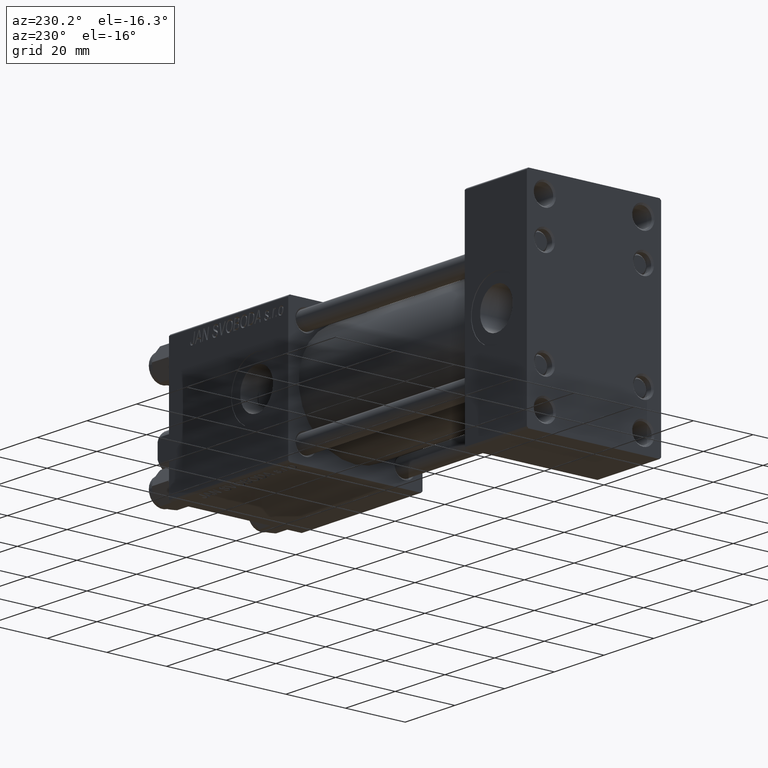
[diagram: clean part render]
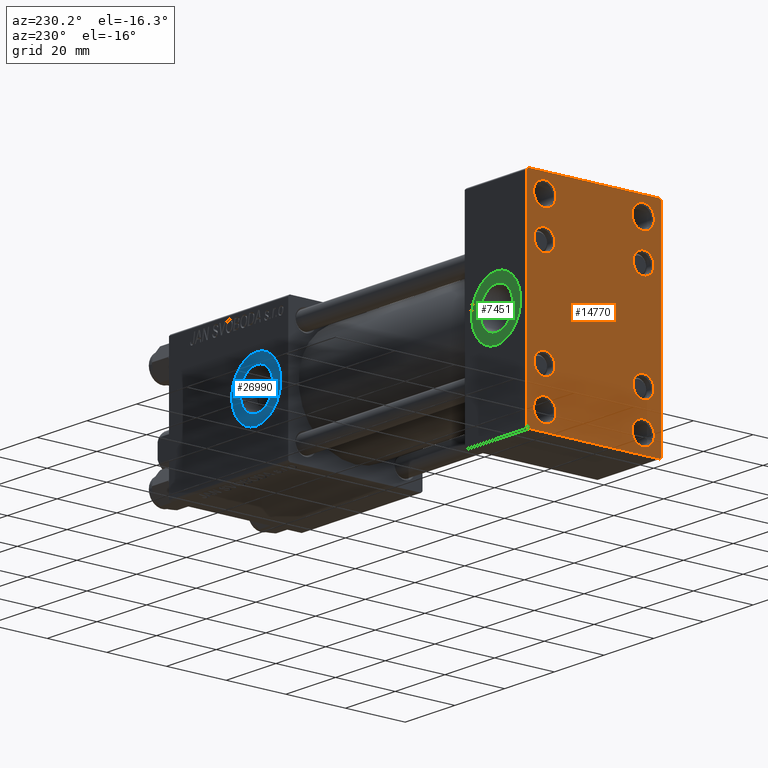
[diagram: same view with three faces highlighted in distinct colors, each labeled with its STEP entity id]
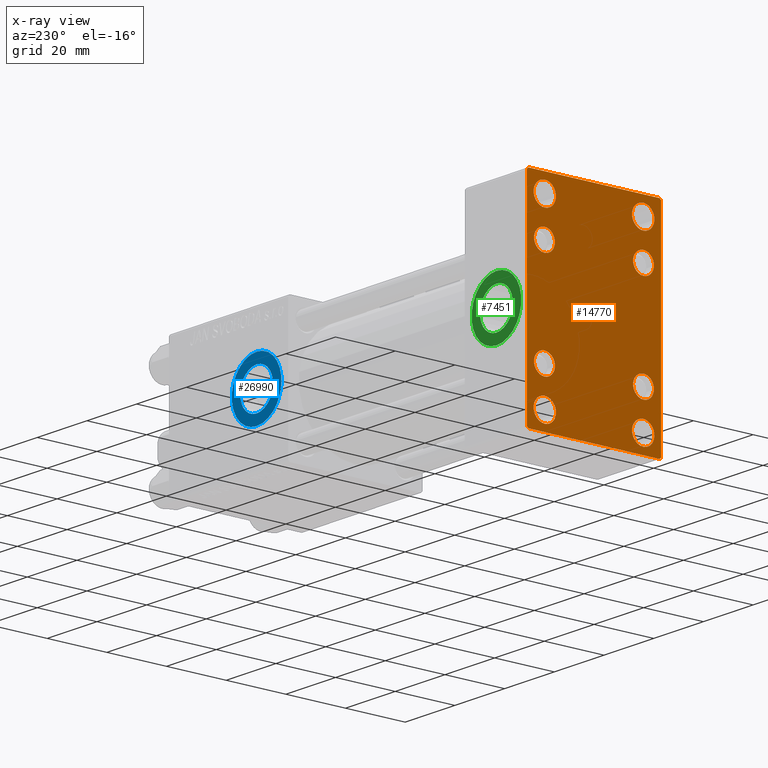
[diagram: x-ray of the same camera — body ghosted, the three highlighted faces saturated]
A machine part, auxiliary view with three faces highlighted in distinct colors.
The next image is the same camera in x-ray (body ghosted, the three faces saturated) — at least one of them is partly hidden behind the body in this view.
Their STEP definitions:

[orange] entity #14770 — the highlighted planar face has unit normal (-1, 0, 0).
#19 = CARTESIAN_POINT ( 'NONE',  ( 0.000000000000000000, -16.59999999999999076, -16.60000000000000853 ) ) ;
#340 = LINE ( 'NONE', #34415, #39537 ) ;
#993 = EDGE_LOOP ( 'NONE', ( #35788, #36703, #14928, #45747, #32340, #28656, #50012, #1225 ) ) ;
#1225 = ORIENTED_EDGE ( 'NONE', *, *, #49461, .T. ) ;
#1514 = EDGE_CURVE ( 'NONE', #44925, #46513, #1589, .T. ) ;
#1589 = LINE ( 'NONE', #13730, #20178 ) ;
#1958 = VERTEX_POINT ( 'NONE', #8285 ) ;
#2101 = EDGE_CURVE ( 'NONE', #17118, #27489, #17764, .T. ) ;
#2146 = EDGE_LOOP ( 'NONE', ( #27275, #46003 ) ) ;
#2256 = AXIS2_PLACEMENT_3D ( 'NONE', #41048, #37242, #14292 ) ;
#2550 = EDGE_LOOP ( 'NONE', ( #7690, #6090 ) ) ;
#2615 = CARTESIAN_POINT ( 'NONE',  ( 0.000000000000000000, 22.00000000000000355, 35.00000000000000711 ) ) ;
#2886 = DIRECTION ( 'NONE',  ( 1.000000000000000000, -0.000000000000000000, 0.000000000000000000 ) ) ;
#2888 = CIRCLE ( 'NONE', #7740, 3.499999999999996003 ) ;
#3359 = AXIS2_PLACEMENT_3D ( 'NONE', #49389, #14545, #38243 ) ;
#3591 = CARTESIAN_POINT ( 'NONE',  ( 0.000000000000000000, 16.49999999999999289, -32.75000000000002132 ) ) ;
#3672 = EDGE_CURVE ( 'NONE', #49989, #28768, #36212, .T. ) ;
#3729 = VERTEX_POINT ( 'NONE', #23301 ) ;
#4315 = AXIS2_PLACEMENT_3D ( 'NONE', #12305, #34225, #11020 ) ;
#4765 = AXIS2_PLACEMENT_3D ( 'NONE', #38702, #22805, #49825 ) ;
#4962 = DIRECTION ( 'NONE',  ( -0.000000000000000000, 0.7071067811865426878, 0.7071067811865524577 ) ) ;
#5072 = VERTEX_POINT ( 'NONE', #40037 ) ;
#5158 = VERTEX_POINT ( 'NONE', #32451 ) ;
#5637 = AXIS2_PLACEMENT_3D ( 'NONE', #25155, #5727, #24419 ) ;
#5727 = DIRECTION ( 'NONE',  ( 1.000000000000000000, -0.000000000000000000, 0.000000000000000000 ) ) ;
#5779 = DIRECTION ( 'NONE',  ( 0.000000000000000000, 0.000000000000000000, -1.000000000000000000 ) ) ;
#5967 = CARTESIAN_POINT ( 'NONE',  ( -0.000000000000000000, -28.50000000000015632, 28.49999999999976197 ) ) ;
#6090 = ORIENTED_EDGE ( 'NONE', *, *, #37581, .T. ) ;
#6102 = DIRECTION ( 'NONE',  ( 1.000000000000000000, -0.000000000000000000, 0.000000000000000000 ) ) ;
#6195 = ORIENTED_EDGE ( 'NONE', *, *, #3672, .T. ) ;
#6526 = DIRECTION ( 'NONE',  ( 1.000000000000000000, -0.000000000000000000, 0.000000000000000000 ) ) ;
#7039 = FACE_OUTER_BOUND ( 'NONE', #993, .T. ) ;
#7209 = EDGE_CURVE ( 'NONE', #27494, #46513, #44171, .T. ) ;
#7690 = ORIENTED_EDGE ( 'NONE', *, *, #47673, .T. ) ;
#7740 = AXIS2_PLACEMENT_3D ( 'NONE', #43168, #19674, #27977 ) ;
#8126 = ORIENTED_EDGE ( 'NONE', *, *, #35413, .T. ) ;
#8285 = CARTESIAN_POINT ( 'NONE',  ( 0.000000000000000000, -16.59999999999999076, -13.10000000000001030 ) ) ;
#8362 = AXIS2_PLACEMENT_3D ( 'NONE', #49472, #14882, #22693 ) ;
#8973 = CIRCLE ( 'NONE', #9773, 3.750000000000013767 ) ;
#9625 = EDGE_CURVE ( 'NONE', #9941, #1958, #46134, .T. ) ;
#9773 = AXIS2_PLACEMENT_3D ( 'NONE', #22895, #49427, #38286 ) ;
#9941 = VERTEX_POINT ( 'NONE', #31956 ) ;
#10356 = DIRECTION ( 'NONE',  ( 1.000000000000000000, -0.000000000000000000, 0.000000000000000000 ) ) ;
#10840 = FACE_BOUND ( 'NONE', #2550, .T. ) ;
#11020 = DIRECTION ( 'NONE',  ( 0.000000000000000000, 0.000000000000000000, 1.000000000000000000 ) ) ;
#11122 = ORIENTED_EDGE ( 'NONE', *, *, #32182, .T. ) ;
#11132 = CIRCLE ( 'NONE', #48244, 3.750000000000003553 ) ;
#11333 = FACE_BOUND ( 'NONE', #13710, .T. ) ;
#11489 = ORIENTED_EDGE ( 'NONE', *, *, #30185, .T. ) ;
#11554 = CARTESIAN_POINT ( 'NONE',  ( 0.000000000000000000, 16.49999999999999289, -29.00000000000000711 ) ) ;
#11586 = FACE_BOUND ( 'NONE', #2146, .T. ) ;
#11842 = EDGE_CURVE ( 'NONE', #26205, #49005, #13106, .T. ) ;
#12305 = CARTESIAN_POINT ( 'NONE',  ( 0.000000000000000000, 16.59999999999999787, 16.60000000000000497 ) ) ;
#12719 = DIRECTION ( 'NONE',  ( 1.000000000000000000, -0.000000000000000000, 0.000000000000000000 ) ) ;
#13077 = DIRECTION ( 'NONE',  ( 0.000000000000000000, 0.000000000000000000, 1.000000000000000000 ) ) ;
#13106 = CIRCLE ( 'NONE', #21175, 3.750000000000013767 ) ;
#13422 = CARTESIAN_POINT ( 'NONE',  ( 0.000000000000000000, -16.50000000000000711, 25.24999999999997513 ) ) ;
#13710 = EDGE_LOOP ( 'NONE', ( #16672, #18071 ) ) ;
#13730 = CARTESIAN_POINT ( 'NONE',  ( 0.000000000000000000, -28.50000000000015632, -28.49999999999976197 ) ) ;
#14292 = DIRECTION ( 'NONE',  ( 0.000000000000000000, 0.000000000000000000, 1.000000000000000000 ) ) ;
#14423 = CIRCLE ( 'NONE', #49095, 3.750000000000003553 ) ;
#14545 = DIRECTION ( 'NONE',  ( 1.000000000000000000, -0.000000000000000000, 0.000000000000000000 ) ) ;
#14707 = CARTESIAN_POINT ( 'NONE',  ( 0.000000000000000000, 16.59999999999999787, -20.10000000000000142 ) ) ;
#14770 = ADVANCED_FACE ( 'NONE', ( #26977, #42401, #34290, #11586, #10840, #11333, #26233, #41640, #7039 ), #34036, .T. ) ;
#14882 = DIRECTION ( 'NONE',  ( -1.000000000000000000, 0.000000000000000000, -0.000000000000000000 ) ) ;
#14928 = ORIENTED_EDGE ( 'NONE', *, *, #40414, .T. ) ;
#15126 = EDGE_LOOP ( 'NONE', ( #19274, #22345 ) ) ;
#15142 = DIRECTION ( 'NONE',  ( 0.000000000000000000, 0.000000000000000000, 1.000000000000000000 ) ) ;
#15259 = DIRECTION ( 'NONE',  ( 0.000000000000000000, 0.000000000000000000, -1.000000000000000000 ) ) ;
#15860 = LINE ( 'NONE', #20383, #28322 ) ;
#16081 = CARTESIAN_POINT ( 'NONE',  ( 0.000000000000000000, -16.50000000000000711, -25.24999999999999289 ) ) ;
#16672 = ORIENTED_EDGE ( 'NONE', *, *, #45152, .T. ) ;
#17118 = VERTEX_POINT ( 'NONE', #29129 ) ;
#17311 = DIRECTION ( 'NONE',  ( 0.000000000000000000, -1.000000000000000000, -1.541976423090495387E-16 ) ) ;
#17764 = CIRCLE ( 'NONE', #5637, 3.499999999999996003 ) ;
#18071 = ORIENTED_EDGE ( 'NONE', *, *, #9625, .T. ) ;
#18101 = DIRECTION ( 'NONE',  ( 0.000000000000000000, 0.000000000000000000, 1.000000000000000000 ) ) ;
#18434 = CIRCLE ( 'NONE', #2256, 3.499999999999996003 ) ;
#18440 = CARTESIAN_POINT ( 'NONE',  ( 0.000000000000000000, 16.59999999999999787, -16.60000000000000497 ) ) ;
#18903 = ORIENTED_EDGE ( 'NONE', *, *, #18930, .T. ) ;
#18930 = EDGE_CURVE ( 'NONE', #20321, #39971, #11132, .T. ) ;
#19151 = EDGE_CURVE ( 'NONE', #27489, #17118, #38553, .T. ) ;
#19274 = ORIENTED_EDGE ( 'NONE', *, *, #2101, .T. ) ;
#19674 = DIRECTION ( 'NONE',  ( 1.000000000000000000, -0.000000000000000000, 0.000000000000000000 ) ) ;
#19723 = AXIS2_PLACEMENT_3D ( 'NONE', #43057, #12719, #35426 ) ;
#19746 = DIRECTION ( 'NONE',  ( 0.000000000000000000, 0.000000000000000000, 1.000000000000000000 ) ) ;
#19787 = EDGE_CURVE ( 'NONE', #3729, #28640, #20835, .T. ) ;
#20178 = VECTOR ( 'NONE', #32886, 1000.000000000000000 ) ;
#20321 = VERTEX_POINT ( 'NONE', #39814 ) ;
#20377 = LINE ( 'NONE', #47393, #36203 ) ;
#20383 = CARTESIAN_POINT ( 'NONE',  ( 0.000000000000000000, 22.50000000000000355, 35.00000000000000711 ) ) ;
#20512 = EDGE_CURVE ( 'NONE', #39971, #20321, #14423, .T. ) ;
#20551 = LINE ( 'NONE', #20790, #40023 ) ;
#20790 = CARTESIAN_POINT ( 'NONE',  ( 0.000000000000000000, 28.49999999999984013, -28.50000000000024158 ) ) ;
#20835 = CIRCLE ( 'NONE', #46662, 3.750000000000017319 ) ;
#20963 = CARTESIAN_POINT ( 'NONE',  ( 0.000000000000000000, -21.99999999999998934, -35.00000000000000000 ) ) ;
#21082 = LINE ( 'NONE', #43580, #36589 ) ;
#21175 = AXIS2_PLACEMENT_3D ( 'NONE', #11554, #6526, #21924 ) ;
#21504 = DIRECTION ( 'NONE',  ( 0.000000000000000000, 0.000000000000000000, 1.000000000000000000 ) ) ;
#21779 = VERTEX_POINT ( 'NONE', #48278 ) ;
#21816 = EDGE_CURVE ( 'NONE', #49005, #26205, #26538, .T. ) ;
#21902 = AXIS2_PLACEMENT_3D ( 'NONE', #19, #39171, #19746 ) ;
#21924 = DIRECTION ( 'NONE',  ( 0.000000000000000000, 0.000000000000000000, 1.000000000000000000 ) ) ;
#22345 = ORIENTED_EDGE ( 'NONE', *, *, #19151, .T. ) ;
#22647 = VECTOR ( 'NONE', #5779, 1000.000000000000000 ) ;
#22693 = DIRECTION ( 'NONE',  ( -0.000000000000000000, 0.000000000000000000, 1.000000000000000000 ) ) ;
#22760 = EDGE_LOOP ( 'NONE', ( #8126, #6195 ) ) ;
#22805 = DIRECTION ( 'NONE',  ( 1.000000000000000000, -0.000000000000000000, 0.000000000000000000 ) ) ;
#22895 = CARTESIAN_POINT ( 'NONE',  ( 0.000000000000000000, -16.50000000000000711, -29.00000000000000711 ) ) ;
#23280 = EDGE_CURVE ( 'NONE', #28640, #3729, #33070, .T. ) ;
#23301 = CARTESIAN_POINT ( 'NONE',  ( 0.000000000000000000, -16.50000000000000711, 32.75000000000000711 ) ) ;
#24419 = DIRECTION ( 'NONE',  ( 0.000000000000000000, 0.000000000000000000, 1.000000000000000000 ) ) ;
#24728 = ORIENTED_EDGE ( 'NONE', *, *, #20512, .T. ) ;
#25155 = CARTESIAN_POINT ( 'NONE',  ( 0.000000000000000000, 16.59999999999999787, -16.60000000000000497 ) ) ;
#26205 = VERTEX_POINT ( 'NONE', #3591 ) ;
#26233 = FACE_BOUND ( 'NONE', #15126, .T. ) ;
#26538 = CIRCLE ( 'NONE', #47559, 3.750000000000013767 ) ;
#26977 = FACE_BOUND ( 'NONE', #28377, .T. ) ;
#27275 = ORIENTED_EDGE ( 'NONE', *, *, #21816, .T. ) ;
#27290 = EDGE_CURVE ( 'NONE', #5158, #34226, #340, .T. ) ;
#27489 = VERTEX_POINT ( 'NONE', #14707 ) ;
#27494 = VERTEX_POINT ( 'NONE', #30330 ) ;
#27874 = VERTEX_POINT ( 'NONE', #42671 ) ;
#27977 = DIRECTION ( 'NONE',  ( 0.000000000000000000, 0.000000000000000000, 1.000000000000000000 ) ) ;
#28322 = VECTOR ( 'NONE', #35257, 1000.000000000000000 ) ;
#28377 = EDGE_LOOP ( 'NONE', ( #18903, #24728 ) ) ;
#28389 = CIRCLE ( 'NONE', #3359, 3.750000000000013767 ) ;
#28640 = VERTEX_POINT ( 'NONE', #13422 ) ;
#28656 = ORIENTED_EDGE ( 'NONE', *, *, #49432, .T. ) ;
#28768 = VERTEX_POINT ( 'NONE', #39626 ) ;
#29045 = CARTESIAN_POINT ( 'NONE',  ( 0.000000000000000000, 16.49999999999999289, -25.24999999999999289 ) ) ;
#29053 = EDGE_CURVE ( 'NONE', #39583, #21779, #15860, .T. ) ;
#29129 = CARTESIAN_POINT ( 'NONE',  ( 0.000000000000000000, 16.59999999999999787, -13.10000000000000675 ) ) ;
#30185 = EDGE_CURVE ( 'NONE', #36292, #37357, #8973, .T. ) ;
#30330 = CARTESIAN_POINT ( 'NONE',  ( 0.000000000000000000, -22.49999999999999645, 34.50000000000000000 ) ) ;
#31956 = CARTESIAN_POINT ( 'NONE',  ( 0.000000000000000000, -16.59999999999999076, -20.10000000000000497 ) ) ;
#32182 = EDGE_CURVE ( 'NONE', #37357, #36292, #28389, .T. ) ;
#32340 = ORIENTED_EDGE ( 'NONE', *, *, #7209, .F. ) ;
#32451 = CARTESIAN_POINT ( 'NONE',  ( 0.000000000000000000, 22.50000000000000355, 34.49999999999999289 ) ) ;
#32886 = DIRECTION ( 'NONE',  ( 0.000000000000000000, -0.7071067811865426878, 0.7071067811865524577 ) ) ;
#33070 = CIRCLE ( 'NONE', #37107, 3.750000000000017319 ) ;
#33420 = EDGE_LOOP ( 'NONE', ( #11122, #11489 ) ) ;
#33646 = EDGE_LOOP ( 'NONE', ( #36096, #38894 ) ) ;
#33746 = CARTESIAN_POINT ( 'NONE',  ( 0.000000000000000000, 22.50000000000000355, -34.49999999999999289 ) ) ;
#33766 = CARTESIAN_POINT ( 'NONE',  ( 0.000000000000000000, -22.49999999999999645, 35.00000000000000000 ) ) ;
#34036 = PLANE ( 'NONE',  #8362 ) ;
#34225 = DIRECTION ( 'NONE',  ( 1.000000000000000000, -0.000000000000000000, 0.000000000000000000 ) ) ;
#34226 = VERTEX_POINT ( 'NONE', #33746 ) ;
#34290 = FACE_BOUND ( 'NONE', #33420, .T. ) ;
#34415 = CARTESIAN_POINT ( 'NONE',  ( 0.000000000000000000, 22.50000000000000355, 35.00000000000000711 ) ) ;
#35257 = DIRECTION ( 'NONE',  ( 0.000000000000000000, -1.000000000000000000, -1.541976423090495387E-16 ) ) ;
#35413 = EDGE_CURVE ( 'NONE', #28768, #49989, #43839, .T. ) ;
#35426 = DIRECTION ( 'NONE',  ( 0.000000000000000000, 0.000000000000000000, 1.000000000000000000 ) ) ;
#35750 = DIRECTION ( 'NONE',  ( 0.000000000000000000, 0.7071067811865376918, -0.7071067811865574537 ) ) ;
#35788 = ORIENTED_EDGE ( 'NONE', *, *, #27290, .T. ) ;
#36096 = ORIENTED_EDGE ( 'NONE', *, *, #19787, .T. ) ;
#36161 = DIRECTION ( 'NONE',  ( -0.000000000000000000, -0.7071067811865525687, -0.7071067811865425767 ) ) ;
#36203 = VECTOR ( 'NONE', #35750, 999.9999999999998863 ) ;
#36212 = CIRCLE ( 'NONE', #4765, 3.499999999999996003 ) ;
#36259 = VERTEX_POINT ( 'NONE', #47945 ) ;
#36269 = DIRECTION ( 'NONE',  ( 1.000000000000000000, -0.000000000000000000, 0.000000000000000000 ) ) ;
#36292 = VERTEX_POINT ( 'NONE', #42090 ) ;
#36589 = VECTOR ( 'NONE', #17311, 1000.000000000000000 ) ;
#36703 = ORIENTED_EDGE ( 'NONE', *, *, #46289, .T. ) ;
#37040 = CARTESIAN_POINT ( 'NONE',  ( 0.000000000000000000, -22.49999999999999645, -34.50000000000000000 ) ) ;
#37107 = AXIS2_PLACEMENT_3D ( 'NONE', #47681, #36269, #13077 ) ;
#37242 = DIRECTION ( 'NONE',  ( 1.000000000000000000, -0.000000000000000000, 0.000000000000000000 ) ) ;
#37245 = CARTESIAN_POINT ( 'NONE',  ( 0.000000000000000000, 16.49999999999999289, 28.99999999999998934 ) ) ;
#37357 = VERTEX_POINT ( 'NONE', #16081 ) ;
#37473 = CARTESIAN_POINT ( 'NONE',  ( 0.000000000000000000, 16.49999999999999289, 28.99999999999998934 ) ) ;
#37581 = EDGE_CURVE ( 'NONE', #5072, #36259, #45498, .T. ) ;
#38243 = DIRECTION ( 'NONE',  ( 0.000000000000000000, 0.000000000000000000, 1.000000000000000000 ) ) ;
#38286 = DIRECTION ( 'NONE',  ( 0.000000000000000000, 0.000000000000000000, 1.000000000000000000 ) ) ;
#38553 = CIRCLE ( 'NONE', #45029, 3.499999999999996003 ) ;
#38702 = CARTESIAN_POINT ( 'NONE',  ( 0.000000000000000000, 16.59999999999999787, 16.60000000000000497 ) ) ;
#38741 = CARTESIAN_POINT ( 'NONE',  ( 0.000000000000000000, -16.50000000000000711, 28.99999999999998934 ) ) ;
#38894 = ORIENTED_EDGE ( 'NONE', *, *, #23280, .T. ) ;
#38924 = DIRECTION ( 'NONE',  ( 0.000000000000000000, 0.000000000000000000, 1.000000000000000000 ) ) ;
#39171 = DIRECTION ( 'NONE',  ( 1.000000000000000000, -0.000000000000000000, 0.000000000000000000 ) ) ;
#39537 = VECTOR ( 'NONE', #15259, 1000.000000000000000 ) ;
#39583 = VERTEX_POINT ( 'NONE', #2615 ) ;
#39626 = CARTESIAN_POINT ( 'NONE',  ( 0.000000000000000000, 16.59999999999999787, 20.10000000000000142 ) ) ;
#39809 = LINE ( 'NONE', #5967, #41063 ) ;
#39814 = CARTESIAN_POINT ( 'NONE',  ( 0.000000000000000000, 16.49999999999999289, 32.74999999999999289 ) ) ;
#39971 = VERTEX_POINT ( 'NONE', #42711 ) ;
#40023 = VECTOR ( 'NONE', #36161, 999.9999999999998863 ) ;
#40037 = CARTESIAN_POINT ( 'NONE',  ( 0.000000000000000000, -16.59999999999999076, 13.10000000000001030 ) ) ;
#40414 = EDGE_CURVE ( 'NONE', #27874, #44925, #21082, .T. ) ;
#40695 = CARTESIAN_POINT ( 'NONE',  ( 0.000000000000000000, 16.49999999999999289, -29.00000000000000711 ) ) ;
#41048 = CARTESIAN_POINT ( 'NONE',  ( 0.000000000000000000, -16.59999999999999076, 16.60000000000000853 ) ) ;
#41063 = VECTOR ( 'NONE', #4962, 1000.000000000000000 ) ;
#41559 = DIRECTION ( 'NONE',  ( 1.000000000000000000, -0.000000000000000000, 0.000000000000000000 ) ) ;
#41640 = FACE_BOUND ( 'NONE', #22760, .T. ) ;
#42090 = CARTESIAN_POINT ( 'NONE',  ( 0.000000000000000000, -16.50000000000000711, -32.75000000000002132 ) ) ;
#42298 = DIRECTION ( 'NONE',  ( 1.000000000000000000, -0.000000000000000000, 0.000000000000000000 ) ) ;
#42401 = FACE_BOUND ( 'NONE', #33646, .T. ) ;
#42671 = CARTESIAN_POINT ( 'NONE',  ( 0.000000000000000000, 21.99999999999999645, -34.99999999999999289 ) ) ;
#42711 = CARTESIAN_POINT ( 'NONE',  ( 0.000000000000000000, 16.49999999999999289, 25.24999999999998934 ) ) ;
#43057 = CARTESIAN_POINT ( 'NONE',  ( 0.000000000000000000, -16.59999999999999076, 16.60000000000000853 ) ) ;
#43168 = CARTESIAN_POINT ( 'NONE',  ( 0.000000000000000000, -16.59999999999999076, -16.60000000000000853 ) ) ;
#43580 = CARTESIAN_POINT ( 'NONE',  ( 0.000000000000000000, 22.50000000000000355, -34.99999999999999289 ) ) ;
#43839 = CIRCLE ( 'NONE', #4315, 3.499999999999996003 ) ;
#44171 = LINE ( 'NONE', #33766, #22647 ) ;
#44925 = VERTEX_POINT ( 'NONE', #20963 ) ;
#45029 = AXIS2_PLACEMENT_3D ( 'NONE', #18440, #10356, #15142 ) ;
#45152 = EDGE_CURVE ( 'NONE', #1958, #9941, #2888, .T. ) ;
#45498 = CIRCLE ( 'NONE', #19723, 3.499999999999996003 ) ;
#45747 = ORIENTED_EDGE ( 'NONE', *, *, #1514, .T. ) ;
#46003 = ORIENTED_EDGE ( 'NONE', *, *, #11842, .T. ) ;
#46134 = CIRCLE ( 'NONE', #21902, 3.499999999999996003 ) ;
#46289 = EDGE_CURVE ( 'NONE', #34226, #27874, #20551, .T. ) ;
#46513 = VERTEX_POINT ( 'NONE', #37040 ) ;
#46662 = AXIS2_PLACEMENT_3D ( 'NONE', #38741, #42298, #46837 ) ;
#46837 = DIRECTION ( 'NONE',  ( 0.000000000000000000, 0.000000000000000000, 1.000000000000000000 ) ) ;
#47219 = CARTESIAN_POINT ( 'NONE',  ( 0.000000000000000000, 16.59999999999999787, 13.10000000000000675 ) ) ;
#47393 = CARTESIAN_POINT ( 'NONE',  ( 0.000000000000000000, 28.50000000000030909, 28.49999999999952038 ) ) ;
#47559 = AXIS2_PLACEMENT_3D ( 'NONE', #40695, #6102, #21504 ) ;
#47673 = EDGE_CURVE ( 'NONE', #36259, #5072, #18434, .T. ) ;
#47681 = CARTESIAN_POINT ( 'NONE',  ( 0.000000000000000000, -16.50000000000000711, 28.99999999999998934 ) ) ;
#47945 = CARTESIAN_POINT ( 'NONE',  ( 0.000000000000000000, -16.59999999999999076, 20.10000000000000853 ) ) ;
#48244 = AXIS2_PLACEMENT_3D ( 'NONE', #37473, #2886, #38924 ) ;
#48278 = CARTESIAN_POINT ( 'NONE',  ( 0.000000000000000000, -21.99999999999998934, 35.00000000000000000 ) ) ;
#49005 = VERTEX_POINT ( 'NONE', #29045 ) ;
#49095 = AXIS2_PLACEMENT_3D ( 'NONE', #37245, #41559, #18101 ) ;
#49389 = CARTESIAN_POINT ( 'NONE',  ( 0.000000000000000000, -16.50000000000000711, -29.00000000000000711 ) ) ;
#49427 = DIRECTION ( 'NONE',  ( 1.000000000000000000, -0.000000000000000000, 0.000000000000000000 ) ) ;
#49432 = EDGE_CURVE ( 'NONE', #27494, #21779, #39809, .T. ) ;
#49461 = EDGE_CURVE ( 'NONE', #39583, #5158, #20377, .T. ) ;
#49472 = CARTESIAN_POINT ( 'NONE',  ( 0.000000000000000000, 0.000000000000000000, 0.000000000000000000 ) ) ;
#49825 = DIRECTION ( 'NONE',  ( 0.000000000000000000, 0.000000000000000000, 1.000000000000000000 ) ) ;
#49989 = VERTEX_POINT ( 'NONE', #47219 ) ;
#50012 = ORIENTED_EDGE ( 'NONE', *, *, #29053, .F. ) ;

[blue] entity #26990 — the highlighted planar face has unit normal (0, 1, 0).
#39 = CARTESIAN_POINT ( 'NONE',  ( 109.0000000000000000, 22.30000000000000426, 0.000000000000000000 ) ) ;
#1130 = DIRECTION ( 'NONE',  ( 0.000000000000000000, 1.000000000000000000, 0.000000000000000000 ) ) ;
#1996 = AXIS2_PLACEMENT_3D ( 'NONE', #27565, #8142, #31597 ) ;
#3636 = DIRECTION ( 'NONE',  ( 0.000000000000000000, 0.000000000000000000, 1.000000000000000000 ) ) ;
#4790 = CARTESIAN_POINT ( 'NONE',  ( 109.0000000000000000, 22.30000000000000426, -9.999999999999994671 ) ) ;
#7064 = CARTESIAN_POINT ( 'NONE',  ( 109.0000000000000000, 22.30000000000000426, 6.580000000000002736 ) ) ;
#7437 = CARTESIAN_POINT ( 'NONE',  ( 109.0000000000000000, 22.30000000000000426, 0.000000000000000000 ) ) ;
#8142 = DIRECTION ( 'NONE',  ( 0.000000000000000000, 1.000000000000000000, 0.000000000000000000 ) ) ;
#8459 = EDGE_CURVE ( 'NONE', #46252, #38045, #22685, .T. ) ;
#11387 = EDGE_CURVE ( 'NONE', #13870, #17299, #17949, .T. ) ;
#11680 = DIRECTION ( 'NONE',  ( 0.000000000000000000, 0.000000000000000000, 1.000000000000000000 ) ) ;
#12202 = CARTESIAN_POINT ( 'NONE',  ( 109.0000000000000000, 22.30000000000000426, 9.999999999999994671 ) ) ;
#13834 = EDGE_LOOP ( 'NONE', ( #20190, #23959 ) ) ;
#13870 = VERTEX_POINT ( 'NONE', #4790 ) ;
#16168 = AXIS2_PLACEMENT_3D ( 'NONE', #26923, #49666, #42348 ) ;
#17299 = VERTEX_POINT ( 'NONE', #12202 ) ;
#17949 = CIRCLE ( 'NONE', #46961, 9.999999999999994671 ) ;
#20048 = CARTESIAN_POINT ( 'NONE',  ( 109.0000000000000000, 22.30000000000000426, -6.580000000000002736 ) ) ;
#20060 = EDGE_CURVE ( 'NONE', #17299, #13870, #22448, .T. ) ;
#20190 = ORIENTED_EDGE ( 'NONE', *, *, #20060, .T. ) ;
#21863 = AXIS2_PLACEMENT_3D ( 'NONE', #43339, #1130, #35717 ) ;
#22448 = CIRCLE ( 'NONE', #37753, 9.999999999999994671 ) ;
#22685 = CIRCLE ( 'NONE', #21863, 6.580000000000002736 ) ;
#22836 = DIRECTION ( 'NONE',  ( 0.000000000000000000, 1.000000000000000000, 0.000000000000000000 ) ) ;
#22990 = ORIENTED_EDGE ( 'NONE', *, *, #37888, .F. ) ;
#23959 = ORIENTED_EDGE ( 'NONE', *, *, #11387, .T. ) ;
#26923 = CARTESIAN_POINT ( 'NONE',  ( 109.0000000000000000, 22.30000000000000426, 0.000000000000000000 ) ) ;
#26990 = ADVANCED_FACE ( 'NONE', ( #39044, #35233 ), #34235, .T. ) ;
#27565 = CARTESIAN_POINT ( 'NONE',  ( 109.0000000000000000, 22.30000000000000426, 0.000000000000000000 ) ) ;
#27752 = EDGE_LOOP ( 'NONE', ( #22990, #41086 ) ) ;
#31597 = DIRECTION ( 'NONE',  ( 0.000000000000000000, 0.000000000000000000, 1.000000000000000000 ) ) ;
#34235 = PLANE ( 'NONE',  #16168 ) ;
#35233 = FACE_OUTER_BOUND ( 'NONE', #13834, .T. ) ;
#35717 = DIRECTION ( 'NONE',  ( 0.000000000000000000, 0.000000000000000000, 1.000000000000000000 ) ) ;
#37753 = AXIS2_PLACEMENT_3D ( 'NONE', #39, #46279, #11680 ) ;
#37888 = EDGE_CURVE ( 'NONE', #38045, #46252, #46371, .T. ) ;
#38045 = VERTEX_POINT ( 'NONE', #7064 ) ;
#39044 = FACE_BOUND ( 'NONE', #27752, .T. ) ;
#41086 = ORIENTED_EDGE ( 'NONE', *, *, #8459, .F. ) ;
#42348 = DIRECTION ( 'NONE',  ( 0.000000000000000000, -0.000000000000000000, 1.000000000000000000 ) ) ;
#43339 = CARTESIAN_POINT ( 'NONE',  ( 109.0000000000000000, 22.30000000000000426, 0.000000000000000000 ) ) ;
#46252 = VERTEX_POINT ( 'NONE', #20048 ) ;
#46279 = DIRECTION ( 'NONE',  ( 0.000000000000000000, 1.000000000000000000, 0.000000000000000000 ) ) ;
#46371 = CIRCLE ( 'NONE', #1996, 6.580000000000002736 ) ;
#46961 = AXIS2_PLACEMENT_3D ( 'NONE', #7437, #22836, #3636 ) ;
#49666 = DIRECTION ( 'NONE',  ( 0.000000000000000000, 1.000000000000000000, 0.000000000000000000 ) ) ;

[green] entity #7451 — the highlighted planar face has unit normal (0, 1, 0).
#2445 = EDGE_CURVE ( 'NONE', #28319, #48263, #22567, .T. ) ;
#3075 = CIRCLE ( 'NONE', #21665, 6.579999999999998295 ) ;
#3798 = ORIENTED_EDGE ( 'NONE', *, *, #2445, .F. ) ;
#7022 = CARTESIAN_POINT ( 'NONE',  ( 12.50000000000000000, 22.30000000000000426, 0.000000000000000000 ) ) ;
#7451 = ADVANCED_FACE ( 'NONE', ( #19649, #42124 ), #34267, .T. ) ;
#8411 = CARTESIAN_POINT ( 'NONE',  ( 12.50000000000000000, 22.30000000000000426, -6.579999999999998295 ) ) ;
#9935 = DIRECTION ( 'NONE',  ( 0.000000000000000000, 0.000000000000000000, 1.000000000000000000 ) ) ;
#10982 = ORIENTED_EDGE ( 'NONE', *, *, #19905, .F. ) ;
#12196 = AXIS2_PLACEMENT_3D ( 'NONE', #35513, #43624, #47162 ) ;
#12584 = DIRECTION ( 'NONE',  ( 0.000000000000000000, 1.000000000000000000, 0.000000000000000000 ) ) ;
#17416 = CIRCLE ( 'NONE', #19025, 9.999999999999996447 ) ;
#18022 = CARTESIAN_POINT ( 'NONE',  ( 12.50000000000000000, 22.30000000000000426, 6.579999999999998295 ) ) ;
#19025 = AXIS2_PLACEMENT_3D ( 'NONE', #26984, #12584, #43403 ) ;
#19649 = FACE_BOUND ( 'NONE', #34843, .T. ) ;
#19905 = EDGE_CURVE ( 'NONE', #48263, #28319, #3075, .T. ) ;
#21665 = AXIS2_PLACEMENT_3D ( 'NONE', #37667, #33880, #9935 ) ;
#21745 = ORIENTED_EDGE ( 'NONE', *, *, #45213, .T. ) ;
#22026 = EDGE_LOOP ( 'NONE', ( #21745, #25059 ) ) ;
#22567 = CIRCLE ( 'NONE', #43579, 6.579999999999998295 ) ;
#22826 = CARTESIAN_POINT ( 'NONE',  ( 12.50000000000000000, 22.30000000000000426, 9.999999999999996447 ) ) ;
#25059 = ORIENTED_EDGE ( 'NONE', *, *, #29110, .T. ) ;
#26984 = CARTESIAN_POINT ( 'NONE',  ( 12.50000000000000000, 22.30000000000000426, 0.000000000000000000 ) ) ;
#28319 = VERTEX_POINT ( 'NONE', #18022 ) ;
#29110 = EDGE_CURVE ( 'NONE', #44167, #46234, #44453, .T. ) ;
#29619 = DIRECTION ( 'NONE',  ( 0.000000000000000000, 0.000000000000000000, 1.000000000000000000 ) ) ;
#33880 = DIRECTION ( 'NONE',  ( 0.000000000000000000, 1.000000000000000000, 0.000000000000000000 ) ) ;
#34267 = PLANE ( 'NONE',  #34711 ) ;
#34711 = AXIS2_PLACEMENT_3D ( 'NONE', #7022, #49697, #45911 ) ;
#34843 = EDGE_LOOP ( 'NONE', ( #3798, #10982 ) ) ;
#35513 = CARTESIAN_POINT ( 'NONE',  ( 12.50000000000000000, 22.30000000000000426, 0.000000000000000000 ) ) ;
#37667 = CARTESIAN_POINT ( 'NONE',  ( 12.50000000000000000, 22.30000000000000426, 0.000000000000000000 ) ) ;
#40994 = DIRECTION ( 'NONE',  ( 0.000000000000000000, 1.000000000000000000, 0.000000000000000000 ) ) ;
#42124 = FACE_OUTER_BOUND ( 'NONE', #22026, .T. ) ;
#43403 = DIRECTION ( 'NONE',  ( 0.000000000000000000, 0.000000000000000000, 1.000000000000000000 ) ) ;
#43579 = AXIS2_PLACEMENT_3D ( 'NONE', #48595, #40994, #29619 ) ;
#43624 = DIRECTION ( 'NONE',  ( 0.000000000000000000, 1.000000000000000000, 0.000000000000000000 ) ) ;
#44167 = VERTEX_POINT ( 'NONE', #47482 ) ;
#44453 = CIRCLE ( 'NONE', #12196, 9.999999999999996447 ) ;
#45213 = EDGE_CURVE ( 'NONE', #46234, #44167, #17416, .T. ) ;
#45911 = DIRECTION ( 'NONE',  ( 0.000000000000000000, -0.000000000000000000, 1.000000000000000000 ) ) ;
#46234 = VERTEX_POINT ( 'NONE', #22826 ) ;
#47162 = DIRECTION ( 'NONE',  ( 0.000000000000000000, 0.000000000000000000, 1.000000000000000000 ) ) ;
#47482 = CARTESIAN_POINT ( 'NONE',  ( 12.50000000000000178, 22.30000000000000426, -9.999999999999996447 ) ) ;
#48263 = VERTEX_POINT ( 'NONE', #8411 ) ;
#48595 = CARTESIAN_POINT ( 'NONE',  ( 12.50000000000000000, 22.30000000000000426, 0.000000000000000000 ) ) ;
#49697 = DIRECTION ( 'NONE',  ( 0.000000000000000000, 1.000000000000000000, 0.000000000000000000 ) ) ;